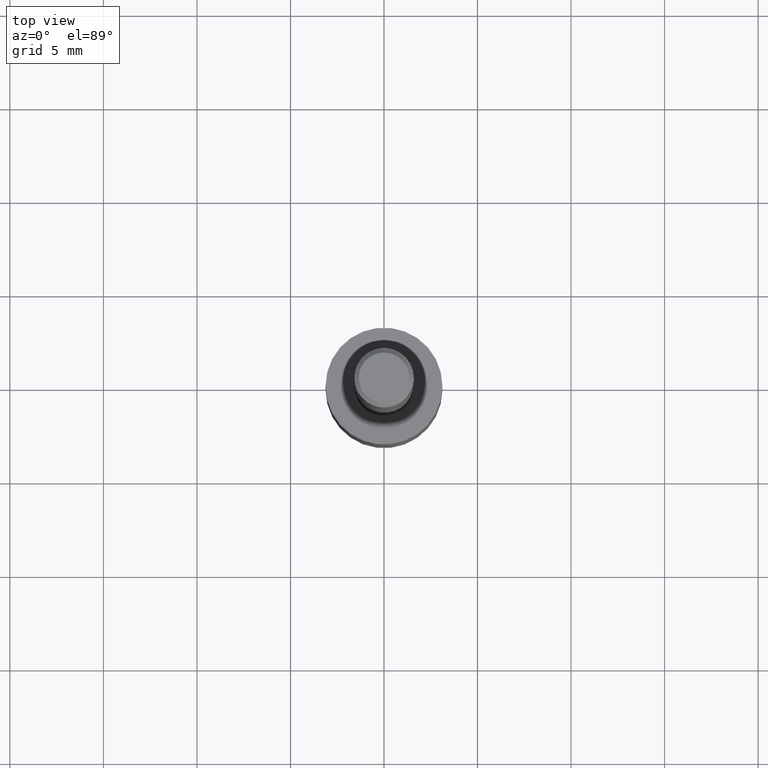
[diagram: clean part render]
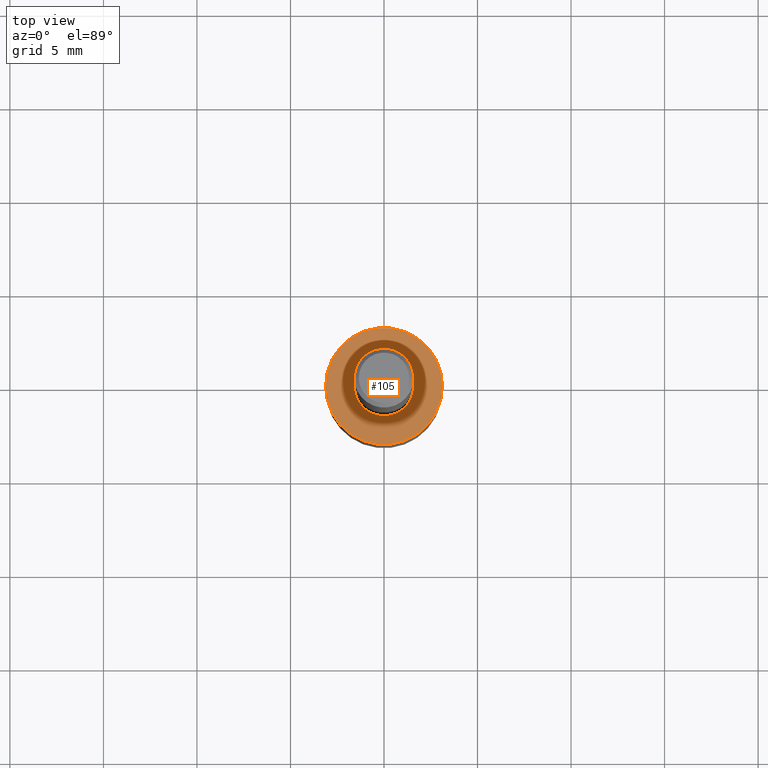
[diagram: same view with one face highlighted and labeled with its STEP entity id]
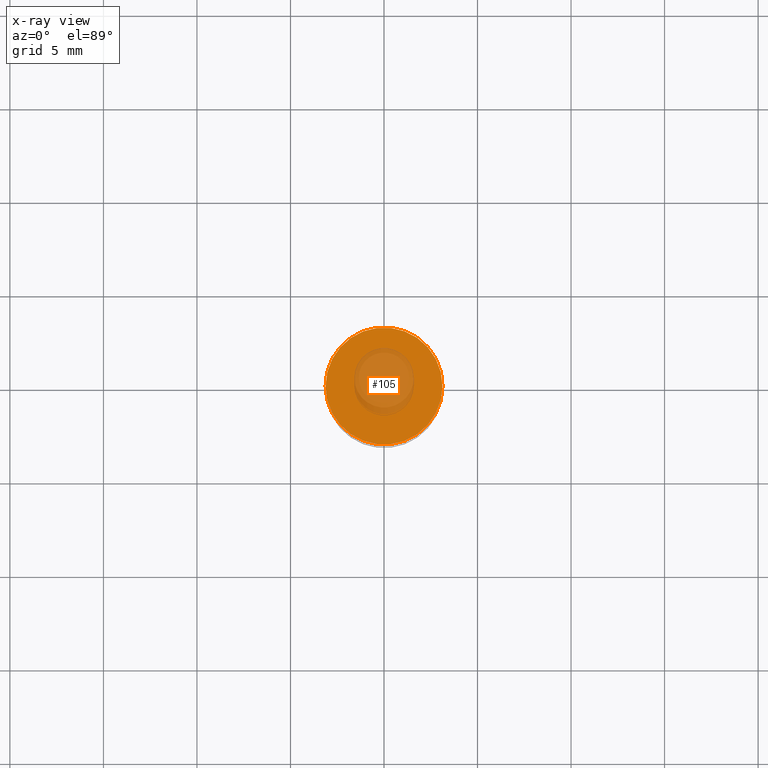
[diagram: x-ray of the same camera — body ghosted, the highlighted face saturated]
A machine part, top view. The second image highlights one B-rep face of the part: STEP entity #105.
The next image is the same camera in x-ray: the body ghosted, the highlighted face saturated — about 30% of this face is hidden behind the body in this view.
In plain terms, the highlighted planar face has unit normal (0, -0, -1).
Its self-contained STEP definition (entity closure, byte-faithful):
#6 = CIRCLE ( 'NONE', #133, 0.1229999999999999982 ) ;
#15 = DIRECTION ( 'NONE',  ( 1.000000000000000000, -6.982962677686265922E-15, 0.000000000000000000 ) ) ;
#32 = DIRECTION ( 'NONE',  ( 1.000000000000000000, -6.982962677686265922E-15, 0.000000000000000000 ) ) ;
#43 = AXIS2_PLACEMENT_3D ( 'NONE', #176, #290, #32 ) ;
#66 = CARTESIAN_POINT ( 'NONE',  ( 2.445468806185136877E-29, -3.491481338843145977E-15, -1.000000000000000222 ) ) ;
#75 = VERTEX_POINT ( 'NONE', #163 ) ;
#99 = ORIENTED_EDGE ( 'NONE', *, *, #192, .T. ) ;
#105 = ADVANCED_FACE ( 'NONE', ( #134 ), #148, .F. ) ;
#123 = DIRECTION ( 'NONE',  ( 2.438088387897960049E-29, -3.491481338843145188E-15, -1.000000000000000000 ) ) ;
#131 = EDGE_LOOP ( 'NONE', ( #206, #99 ) ) ;
#133 = AXIS2_PLACEMENT_3D ( 'NONE', #66, #251, #15 ) ;
#134 = FACE_OUTER_BOUND ( 'NONE', #131, .T. ) ;
#148 = PLANE ( 'NONE',  #223 ) ;
#163 = CARTESIAN_POINT ( 'NONE',  ( -0.1229999999999999982, -3.390255682642628004E-15, -1.000000000000000222 ) ) ;
#176 = CARTESIAN_POINT ( 'NONE',  ( 2.445468806185136877E-29, -3.491481338843145977E-15, -1.000000000000000222 ) ) ;
#192 = EDGE_CURVE ( 'NONE', #75, #331, #6, .T. ) ;
#194 = CIRCLE ( 'NONE', #43, 0.1229999999999999982 ) ;
#203 = DIRECTION ( 'NONE',  ( -1.000000000000000000, 6.982962677686265922E-15, -4.876176775795935793E-29 ) ) ;
#206 = ORIENTED_EDGE ( 'NONE', *, *, #236, .T. ) ;
#207 = CARTESIAN_POINT ( 'NONE',  ( 0.1229999999999999982, -4.350385748198556498E-15, -1.000000000000000222 ) ) ;
#223 = AXIS2_PLACEMENT_3D ( 'NONE', #257, #123, #203 ) ;
#236 = EDGE_CURVE ( 'NONE', #331, #75, #194, .T. ) ;
#251 = DIRECTION ( 'NONE',  ( -2.445468806185136597E-29, 3.491481338843145583E-15, 1.000000000000000000 ) ) ;
#257 = CARTESIAN_POINT ( 'NONE',  ( 3.220931919228619559E-29, -2.380974024345478339E-15, -1.000000000000000222 ) ) ;
#290 = DIRECTION ( 'NONE',  ( -2.445468806185136597E-29, 3.491481338843145583E-15, 1.000000000000000000 ) ) ;
#331 = VERTEX_POINT ( 'NONE', #207 ) ;